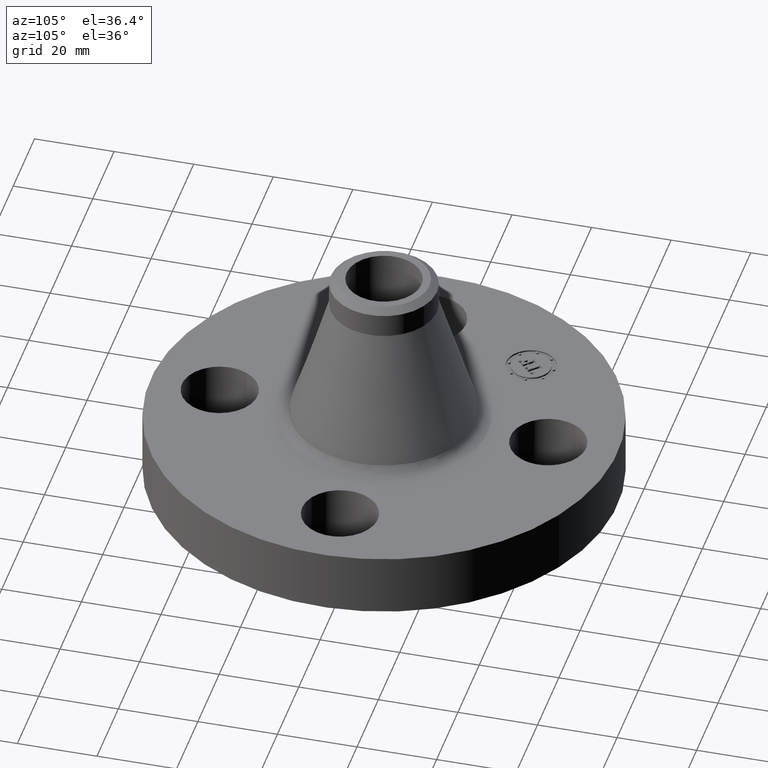
[diagram: clean part render]
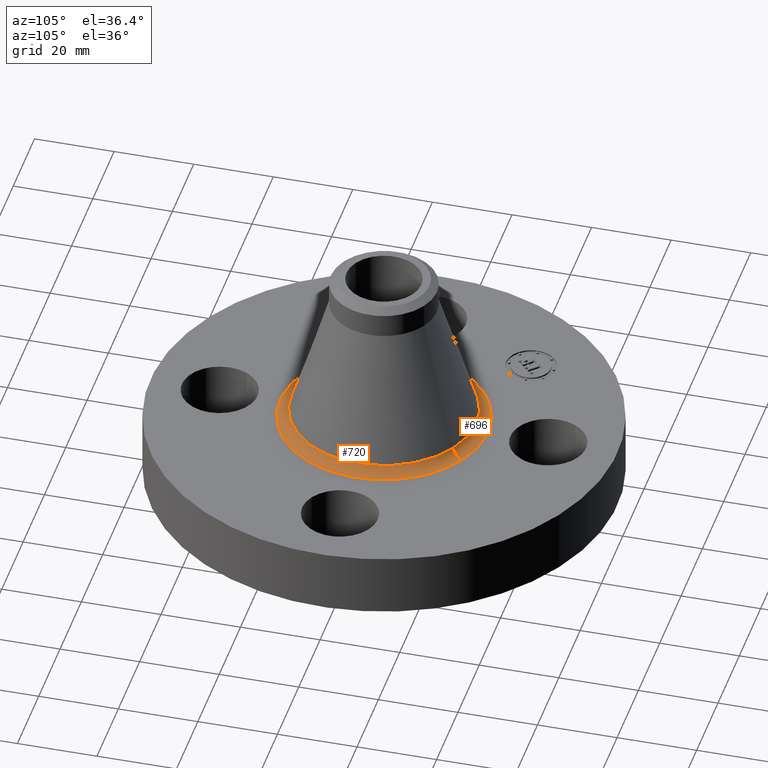
[diagram: same view with one multi-face feature highlighted, each face labeled with its STEP entity id]
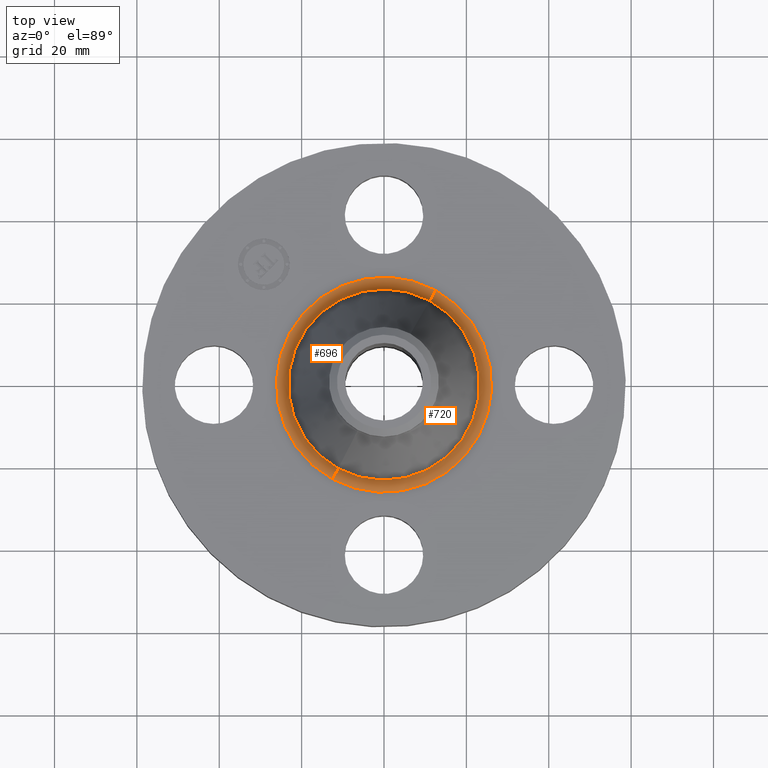
[diagram: same view with one multi-face feature highlighted, each face labeled with its STEP entity id]
A machine part, auxiliary view. The highlighted faces form ONE feature: a constant-radius fillet chain: 2 tangent blend faces with common blend radius 3.048 mm. The faces share edges in the B-rep.
A second angle (top view) of the same feature is appended — it is thin or edge-on in the first view.
Their STEP definitions:
[1] entity #696 (Torus):
#309=AXIS2_PLACEMENT_3D('Circle Axis2P3D',#307,#308,$) ;
#669=AXIS2_PLACEMENT_3D('Torus Axis2P3D',#666,#667,#668) ;
#673=AXIS2_PLACEMENT_3D('Circle Axis2P3D',#671,#672,$) ;
#680=AXIS2_PLACEMENT_3D('Circle Axis2P3D',#678,#679,$) ;
#687=AXIS2_PLACEMENT_3D('Circle Axis2P3D',#685,#686,$) ;
#307=CARTESIAN_POINT('Axis2P3D Location',(4.36655086542E-011,-6.76973787614E-014,0.620000000002)) ;
#311=CARTESIAN_POINT('Vertex',(-0.493032242462,-0.902489466236,0.620000000003)) ;
#313=CARTESIAN_POINT('Vertex',(0.493032242461,0.902489466232,0.620000000003)) ;
#666=CARTESIAN_POINT('Axis2P3D Location',(0.,0.,0.740000000003)) ;
#671=CARTESIAN_POINT('Axis2P3D Location',(-0.493032242463,-0.902489466236,0.740000000003)) ;
#675=CARTESIAN_POINT('Vertex',(-0.438090692601,-0.801919633801,0.704403161619)) ;
#678=CARTESIAN_POINT('Axis2P3D Location',(0.,0.,0.704403161619)) ;
#682=CARTESIAN_POINT('Vertex',(0.438090692601,0.801919633801,0.704403161619)) ;
#685=CARTESIAN_POINT('Axis2P3D Location',(0.493032242463,0.902489466236,0.740000000003)) ;
#308=DIRECTION('Axis2P3D Direction',(0.,0.,-0.0393700787402)) ;
#667=DIRECTION('Axis2P3D Direction',(0.,0.,-0.0393700787402)) ;
#668=DIRECTION('Axis2P3D XDirection',(-0.0188750212049,-0.0345504945626,0.)) ;
#672=DIRECTION('Axis2P3D Direction',(0.0345504945626,-0.0188750212049,0.)) ;
#679=DIRECTION('Axis2P3D Direction',(-0.,0.,-0.0393700787402)) ;
#686=DIRECTION('Axis2P3D Direction',(-0.0345504945626,0.0188750212049,0.)) ;
#691=ORIENTED_EDGE('',*,*,#315,.F.) ;
#692=ORIENTED_EDGE('',*,*,#677,.T.) ;
#693=ORIENTED_EDGE('',*,*,#684,.T.) ;
#694=ORIENTED_EDGE('',*,*,#689,.F.) ;
#696=ADVANCED_FACE('PartBody',(#695),#670,.F.) ;
#310=CIRCLE('generated circle',#309,1.02838126625) ;
#674=CIRCLE('generated circle',#673,0.12) ;
#681=CIRCLE('generated circle',#680,0.913782552919) ;
#688=CIRCLE('generated circle',#687,0.12) ;
#670=TOROIDAL_SURFACE('homeo Torus',#669,1.02838126625,0.12) ;
#315=EDGE_CURVE('',#312,#314,#310,.T.) ;
#677=EDGE_CURVE('',#312,#676,#674,.T.) ;
#684=EDGE_CURVE('',#676,#683,#681,.T.) ;
#689=EDGE_CURVE('',#314,#683,#688,.T.) ;
#690=EDGE_LOOP('',(#691,#692,#693,#694)) ;
#695=FACE_OUTER_BOUND('',#690,.T.) ;
#312=VERTEX_POINT('',#311) ;
#314=VERTEX_POINT('',#313) ;
#676=VERTEX_POINT('',#675) ;
#683=VERTEX_POINT('',#682) ;
[2] entity #720 (Torus):
#318=AXIS2_PLACEMENT_3D('Circle Axis2P3D',#316,#317,$) ;
#673=AXIS2_PLACEMENT_3D('Circle Axis2P3D',#671,#672,$) ;
#687=AXIS2_PLACEMENT_3D('Circle Axis2P3D',#685,#686,$) ;
#707=AXIS2_PLACEMENT_3D('Torus Axis2P3D',#704,#705,#706) ;
#711=AXIS2_PLACEMENT_3D('Circle Axis2P3D',#709,#710,$) ;
#311=CARTESIAN_POINT('Vertex',(-0.493032242462,-0.902489466236,0.620000000003)) ;
#313=CARTESIAN_POINT('Vertex',(0.493032242461,0.902489466232,0.620000000003)) ;
#316=CARTESIAN_POINT('Axis2P3D Location',(-1.28118688012E-011,3.07858026036E-011,0.620000000002)) ;
#671=CARTESIAN_POINT('Axis2P3D Location',(-0.493032242463,-0.902489466236,0.740000000003)) ;
#675=CARTESIAN_POINT('Vertex',(-0.438090692601,-0.801919633801,0.704403161619)) ;
#682=CARTESIAN_POINT('Vertex',(0.438090692601,0.801919633801,0.704403161619)) ;
#685=CARTESIAN_POINT('Axis2P3D Location',(0.493032242463,0.902489466236,0.740000000003)) ;
#704=CARTESIAN_POINT('Axis2P3D Location',(0.,0.,0.740000000003)) ;
#709=CARTESIAN_POINT('Axis2P3D Location',(0.,0.,0.704403161619)) ;
#317=DIRECTION('Axis2P3D Direction',(0.,0.,-0.0393700787402)) ;
#672=DIRECTION('Axis2P3D Direction',(0.0345504945626,-0.0188750212049,0.)) ;
#686=DIRECTION('Axis2P3D Direction',(-0.0345504945626,0.0188750212049,0.)) ;
#705=DIRECTION('Axis2P3D Direction',(0.,0.,-0.0393700787402)) ;
#706=DIRECTION('Axis2P3D XDirection',(0.0188750212049,0.0345504945626,0.)) ;
#710=DIRECTION('Axis2P3D Direction',(-0.,0.,-0.0393700787402)) ;
#715=ORIENTED_EDGE('',*,*,#320,.F.) ;
#716=ORIENTED_EDGE('',*,*,#689,.T.) ;
#717=ORIENTED_EDGE('',*,*,#713,.T.) ;
#718=ORIENTED_EDGE('',*,*,#677,.F.) ;
#720=ADVANCED_FACE('PartBody',(#719),#708,.F.) ;
#319=CIRCLE('generated circle',#318,1.02838126625) ;
#674=CIRCLE('generated circle',#673,0.12) ;
#688=CIRCLE('generated circle',#687,0.12) ;
#712=CIRCLE('generated circle',#711,0.913782552919) ;
#708=TOROIDAL_SURFACE('homeo Torus',#707,1.02838126625,0.12) ;
#320=EDGE_CURVE('',#314,#312,#319,.T.) ;
#677=EDGE_CURVE('',#312,#676,#674,.T.) ;
#689=EDGE_CURVE('',#314,#683,#688,.T.) ;
#713=EDGE_CURVE('',#683,#676,#712,.T.) ;
#714=EDGE_LOOP('',(#715,#716,#717,#718)) ;
#719=FACE_OUTER_BOUND('',#714,.T.) ;
#312=VERTEX_POINT('',#311) ;
#314=VERTEX_POINT('',#313) ;
#676=VERTEX_POINT('',#675) ;
#683=VERTEX_POINT('',#682) ;